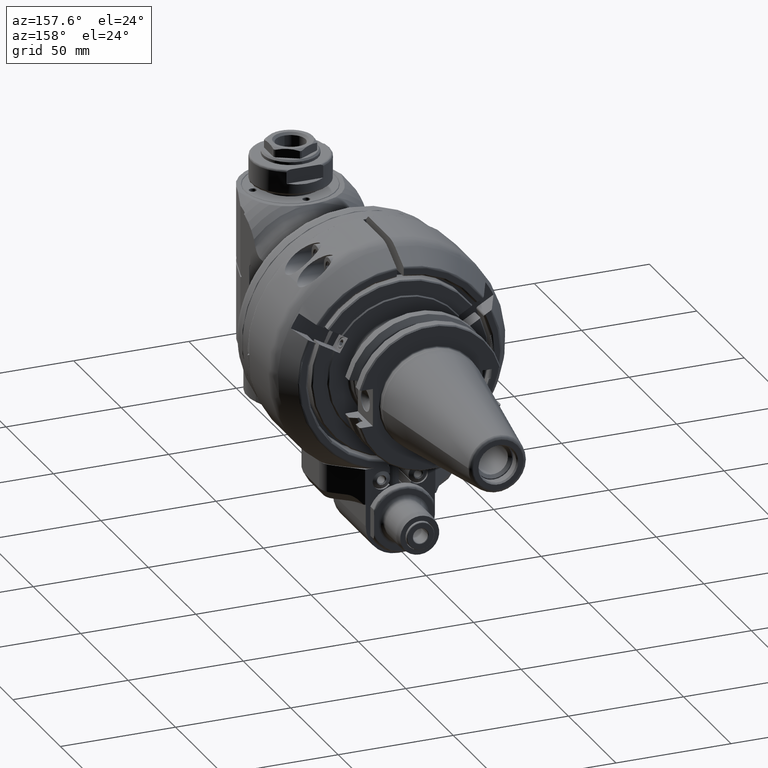
[diagram: clean part render]
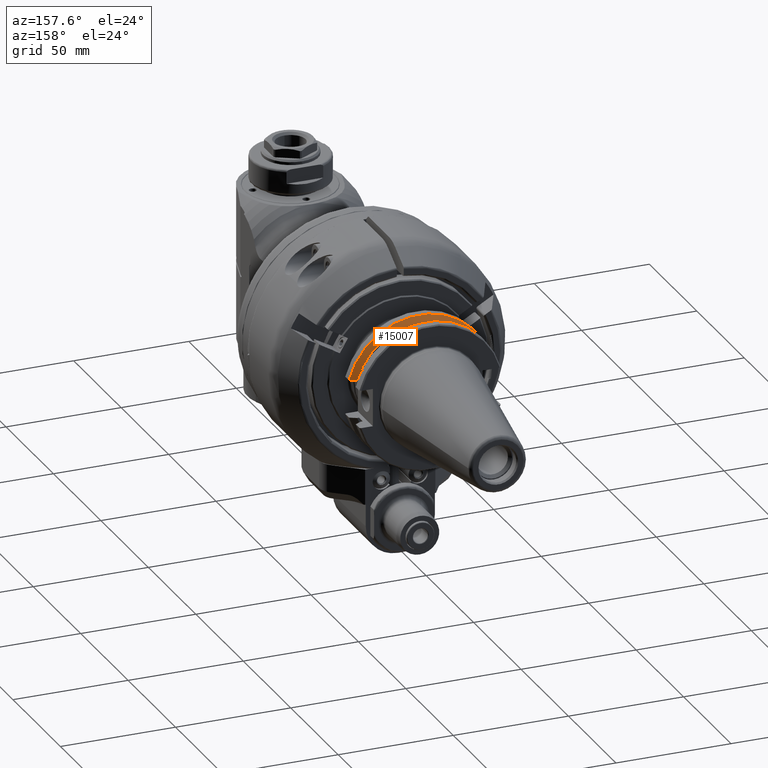
[diagram: same view with one face highlighted and labeled with its STEP entity id]
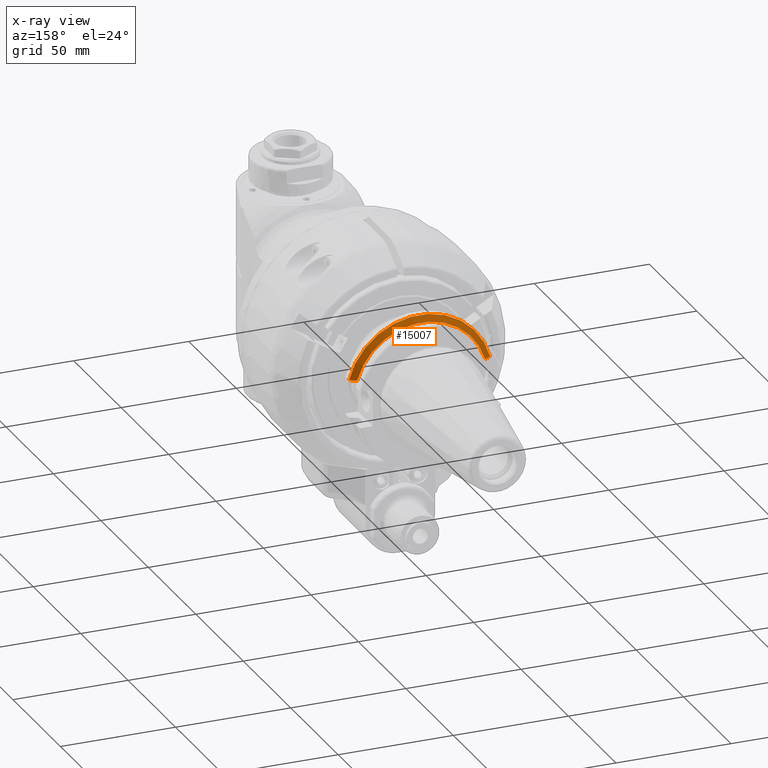
[diagram: x-ray of the same camera — body ghosted, the highlighted face saturated]
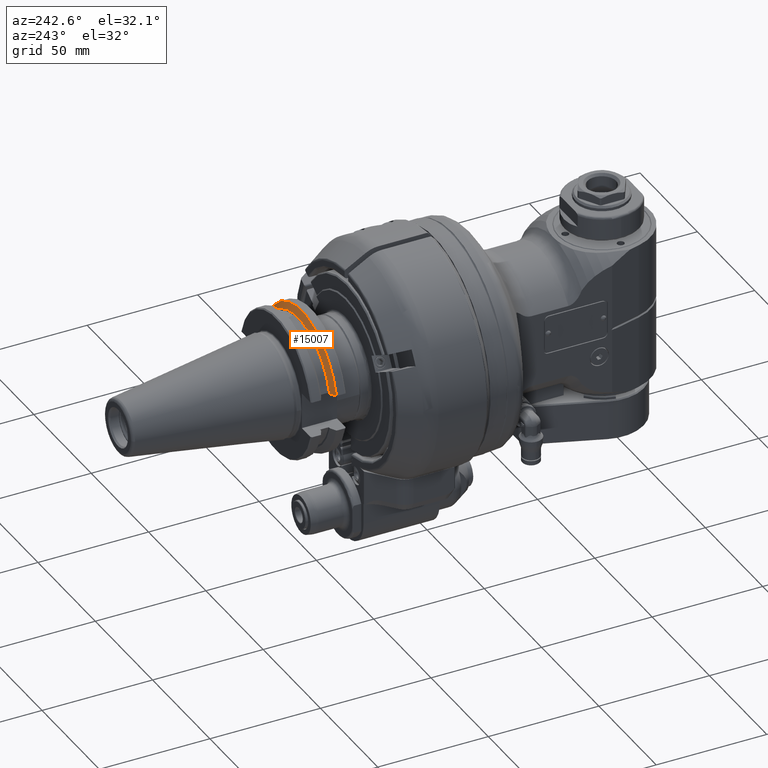
[diagram: same view with one face highlighted and labeled with its STEP entity id]
A machine part, auxiliary view. The second image highlights one B-rep face of the part: STEP entity #15007.
The next image is the same camera in x-ray: the body ghosted, the highlighted face saturated — about 0% of this face is hidden behind the body in this view.
A second angle (auxiliary view) of the same face is appended — the face is thin or edge-on in the first view.
In plain terms, the highlighted conical surface has half-angle 60 deg.
Its self-contained STEP definition (entity closure, byte-faithful):
#245=B_SPLINE_CURVE_WITH_KNOTS('',3,(#29424,#29425,#29426,#29427,#29428,
#29429,#29430,#29431,#29432,#29433,#29434,#29435,#29436,#29437,#29438,#29439,
#29440,#29441,#29442),.UNSPECIFIED.,.F.,.F.,(4,3,3,3,3,3,4),(4.47746489703848E-7,
0.302890808400834,0.3333333333333,0.625219869259392,0.6666666666667,0.976481264687557,
1.),.UNSPECIFIED.);
#252=B_SPLINE_CURVE_WITH_KNOTS('',3,(#29531,#29532,#29533,#29534,#29535,
#29536,#29537,#29538,#29539,#29540,#29541,#29542,#29543,#29544,#29545,#29546,
#29547,#29548,#29549),.UNSPECIFIED.,.F.,.F.,(4,3,3,3,3,3,4),(4.47604878497078E-7,
0.302606634726673,0.3333333333333,0.624608288558914,0.6666666666667,0.976201709832626,
1.),.UNSPECIFIED.);
#808=CONICAL_SURFACE('',#16740,30.35685371176,1.0471975511966);
#3855=FACE_OUTER_BOUND('',#4889,.T.);
#4889=EDGE_LOOP('',(#13452,#13453,#13454,#13455));
#5734=CIRCLE('',#16737,28.96370742351);
#5736=CIRCLE('',#16741,31.75);
#7126=VERTEX_POINT('',#29420);
#7128=VERTEX_POINT('',#29423);
#7135=VERTEX_POINT('',#29485);
#7141=VERTEX_POINT('',#29529);
#9250=EDGE_CURVE('',#7128,#7126,#245,.T.);
#9259=EDGE_CURVE('',#7135,#7126,#5734,.T.);
#9268=EDGE_CURVE('',#7141,#7135,#252,.T.);
#9269=EDGE_CURVE('',#7141,#7128,#5736,.T.);
#13452=ORIENTED_EDGE('',*,*,#9250,.T.);
#13453=ORIENTED_EDGE('',*,*,#9259,.F.);
#13454=ORIENTED_EDGE('',*,*,#9268,.F.);
#13455=ORIENTED_EDGE('',*,*,#9269,.T.);
#15007=ADVANCED_FACE('',(#3855),#808,.T.);
#16737=AXIS2_PLACEMENT_3D('',#29487,#20995,#20996);
#16740=AXIS2_PLACEMENT_3D('',#29550,#21005,#21006);
#16741=AXIS2_PLACEMENT_3D('',#29551,#21007,#21008);
#20995=DIRECTION('center_axis',(0.,1.,0.));
#20996=DIRECTION('ref_axis',(-0.959173162084813,0.,0.282819456785104));
#21005=DIRECTION('center_axis',(0.,-1.,0.));
#21006=DIRECTION('ref_axis',(1.,0.,0.));
#21007=DIRECTION('center_axis',(0.,1.,0.));
#21008=DIRECTION('ref_axis',(-0.96614491666623,0.,0.258000000000008));
#29420=CARTESIAN_POINT('',(27.7812135490175,61.447999132578,8.19149903390034));
#29423=CARTESIAN_POINT('',(30.6751009774094,59.8393332126178,8.19150055406647));
#29424=CARTESIAN_POINT('Ctrl Pts',(30.675100968208,59.839333196122,8.19150074271858));
#29425=CARTESIAN_POINT('Ctrl Pts',(30.3535418911067,60.0187001427795,8.1915007464918));
#29426=CARTESIAN_POINT('Ctrl Pts',(30.0408944784529,60.192907983877,8.1915011861978));
#29427=CARTESIAN_POINT('Ctrl Pts',(29.737617575082,60.3617177764795,8.19150018922443));
#29428=CARTESIAN_POINT('Ctrl Pts',(29.7071361999984,60.3786842996434,8.19150008902188));
#29429=CARTESIAN_POINT('Ctrl Pts',(29.676749476502,60.3955962938468,8.19150001715855));
#29430=CARTESIAN_POINT('Ctrl Pts',(29.6464578666756,60.412453516496,8.19149999999989));
#29431=CARTESIAN_POINT('Ctrl Pts',(29.3560183226668,60.5740825645236,8.19149983548068));
#29432=CARTESIAN_POINT('Ctrl Pts',(29.0743239208368,60.7306769754714,8.19149875413895));
#29433=CARTESIAN_POINT('Ctrl Pts',(28.8001619916302,60.8829257254473,8.19149977017881));
#29434=CARTESIAN_POINT('Ctrl Pts',(28.7612320221454,60.9045444790351,8.19149991445267));
#29435=CARTESIAN_POINT('Ctrl Pts',(28.7224539410732,60.9260756113267,8.19150001608284));
#29436=CARTESIAN_POINT('Ctrl Pts',(28.6838242881666,60.9475210949034,8.19149999999975));
#29437=CARTESIAN_POINT('Ctrl Pts',(28.3950678308383,61.107825974636,8.19149987977876));
#29438=CARTESIAN_POINT('Ctrl Pts',(28.114603541655,61.2633444860622,8.19149992339159));
#29439=CARTESIAN_POINT('Ctrl Pts',(27.8429329587673,61.4138166850496,8.19149923508755));
#29440=CARTESIAN_POINT('Ctrl Pts',(27.8223098229566,61.425239374111,8.19149918283682));
#29441=CARTESIAN_POINT('Ctrl Pts',(27.8017373590199,61.4366329829107,8.19149915083801));
#29442=CARTESIAN_POINT('Ctrl Pts',(27.7812157846801,61.4479973977341,8.1914991505618));
#29485=CARTESIAN_POINT('',(-27.7812135493128,61.4479991325089,8.19149903375297));
#29487=CARTESIAN_POINT('Origin',(0.,61.448,0.));
#29529=CARTESIAN_POINT('',(-30.6751009778011,59.839333212037,8.19150055396293));
#29531=CARTESIAN_POINT('Ctrl Pts',(-30.6751009687483,59.8393331958078,8.19150074280488));
#29532=CARTESIAN_POINT('Ctrl Pts',(-30.3538235117568,60.018543053635,8.19150074657633));
#29533=CARTESIAN_POINT('Ctrl Pts',(-30.0414471818438,60.1926000107428,8.19150119704704));
#29534=CARTESIAN_POINT('Ctrl Pts',(-29.7384323882042,60.3612642351849,8.19150019259787));
#29535=CARTESIAN_POINT('Ctrl Pts',(-29.7076641996022,60.3783904375255,8.19150009060588));
#29536=CARTESIAN_POINT('Ctrl Pts',(-29.6769925266122,60.3954610385482,8.19150001734491));
#29537=CARTESIAN_POINT('Ctrl Pts',(-29.6464178473528,60.4124757871676,8.19150000000013));
#29538=CARTESIAN_POINT('Ctrl Pts',(-29.3565839655434,60.5737677699396,8.19149983557964));
#29539=CARTESIAN_POINT('Ctrl Pts',(-29.0754672566944,60.7300413860992,8.19149872943009));
#29540=CARTESIAN_POINT('Ctrl Pts',(-28.8018550530061,60.8819855258382,8.19149976144508));
#29541=CARTESIAN_POINT('Ctrl Pts',(-28.7623470715914,60.9039253595444,8.19149991046193));
#29542=CARTESIAN_POINT('Ctrl Pts',(-28.7229955684904,60.9257749251856,8.19150001628811));
#29543=CARTESIAN_POINT('Ctrl Pts',(-28.6837969052144,60.9475362967112,8.19149999999998));
#29544=CARTESIAN_POINT('Ctrl Pts',(-28.3953083691585,61.1076924267758,8.19149988012502));
#29545=CARTESIAN_POINT('Ctrl Pts',(-28.1150969781213,61.2630708656205,8.19149993342781));
#29546=CARTESIAN_POINT('Ctrl Pts',(-27.8436659632158,61.4134106899821,8.19149923716551));
#29547=CARTESIAN_POINT('Ctrl Pts',(-27.8227972628997,61.4249694160225,8.19149918363408));
#29548=CARTESIAN_POINT('Ctrl Pts',(-27.8019804611999,61.4364983580649,8.19149915077043));
#29549=CARTESIAN_POINT('Ctrl Pts',(-27.7812157850753,61.4479973975268,8.19149915049096));
#29550=CARTESIAN_POINT('Origin',(0.,60.64366661546,0.));
#29551=CARTESIAN_POINT('Origin',(0.,59.83933323092,0.));